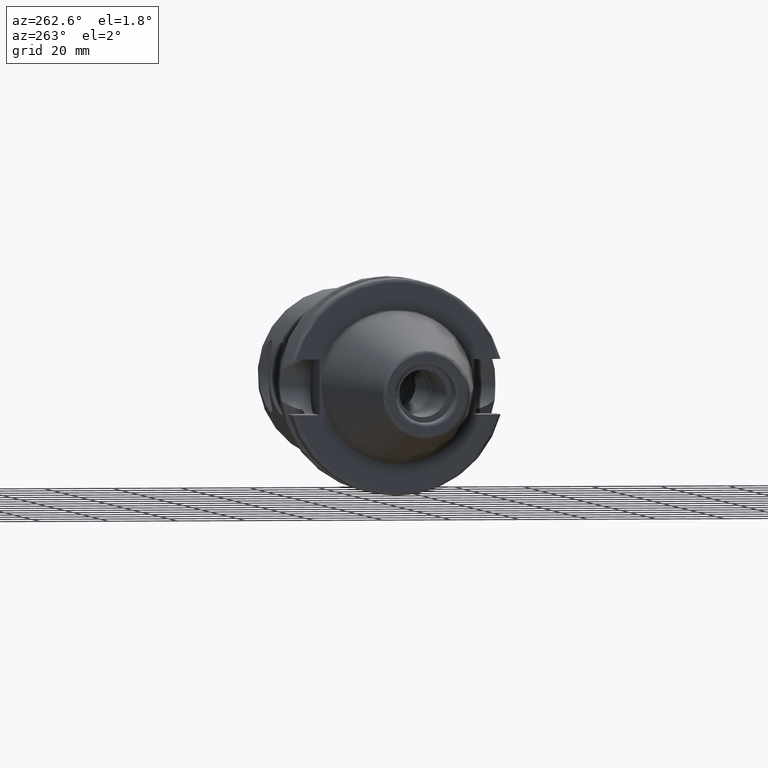
[diagram: clean part render]
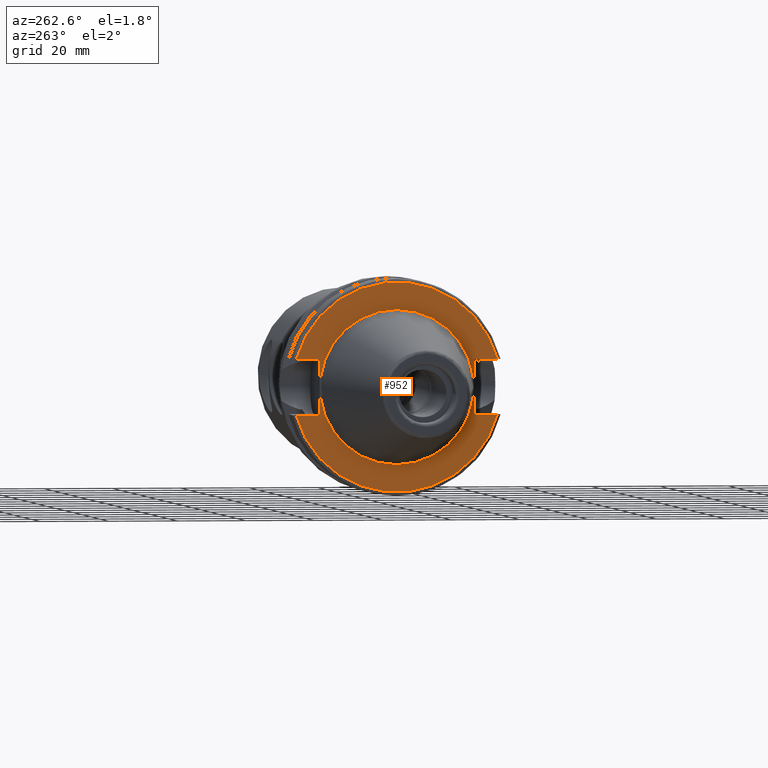
[diagram: same view with one face highlighted and labeled with its STEP entity id]
A machine part, auxiliary view. The second image highlights one B-rep face of the part: STEP entity #952.
In plain terms, the highlighted planar face has unit normal (-1, 0, 0).
Its self-contained STEP definition (entity closure, byte-faithful):
#73=LINE('',#2024,#122);
#77=LINE('',#2032,#126);
#80=LINE('',#2052,#129);
#91=LINE('',#2152,#140);
#94=LINE('',#2173,#143);
#96=LINE('',#2176,#145);
#122=VECTOR('',#1225,10.);
#126=VECTOR('',#1231,10.);
#129=VECTOR('',#1236,10.);
#140=VECTOR('',#1291,10.);
#143=VECTOR('',#1296,10.);
#145=VECTOR('',#1300,10.);
#177=FACE_BOUND('',#304,.T.);
#192=PLANE('',#1080);
#239=FACE_OUTER_BOUND('',#303,.T.);
#303=EDGE_LOOP('',(#838,#839,#840,#841,#842,#843,#844,#845));
#304=EDGE_LOOP('',(#846));
#358=CIRCLE('',#1057,30.5);
#370=CIRCLE('',#1079,22.5);
#371=CIRCLE('',#1081,30.5);
#431=VERTEX_POINT('',#2012);
#432=VERTEX_POINT('',#2023);
#434=VERTEX_POINT('',#2029);
#435=VERTEX_POINT('',#2031);
#450=VERTEX_POINT('',#2112);
#457=VERTEX_POINT('',#2149);
#458=VERTEX_POINT('',#2151);
#462=VERTEX_POINT('',#2172);
#470=VERTEX_POINT('',#2202);
#540=EDGE_CURVE('',#432,#431,#73,.T.);
#544=EDGE_CURVE('',#435,#434,#77,.T.);
#549=EDGE_CURVE('',#434,#432,#80,.T.);
#569=EDGE_CURVE('',#435,#450,#358,.T.);
#579=EDGE_CURVE('',#458,#457,#91,.T.);
#584=EDGE_CURVE('',#462,#450,#94,.T.);
#586=EDGE_CURVE('',#457,#462,#96,.T.);
#600=EDGE_CURVE('',#470,#470,#370,.T.);
#601=EDGE_CURVE('',#458,#431,#371,.T.);
#838=ORIENTED_EDGE('',*,*,#540,.T.);
#839=ORIENTED_EDGE('',*,*,#601,.F.);
#840=ORIENTED_EDGE('',*,*,#579,.T.);
#841=ORIENTED_EDGE('',*,*,#586,.T.);
#842=ORIENTED_EDGE('',*,*,#584,.T.);
#843=ORIENTED_EDGE('',*,*,#569,.F.);
#844=ORIENTED_EDGE('',*,*,#544,.T.);
#845=ORIENTED_EDGE('',*,*,#549,.T.);
#846=ORIENTED_EDGE('',*,*,#600,.T.);
#952=ADVANCED_FACE('',(#239,#177),#192,.T.);
#1057=AXIS2_PLACEMENT_3D('',#2113,#1278,#1279);
#1079=AXIS2_PLACEMENT_3D('',#2204,#1336,#1337);
#1080=AXIS2_PLACEMENT_3D('',#2205,#1338,#1339);
#1081=AXIS2_PLACEMENT_3D('',#2206,#1340,#1341);
#1225=DIRECTION('',(0.,-1.,0.));
#1231=DIRECTION('',(0.,1.,0.));
#1236=DIRECTION('',(0.,0.,1.));
#1278=DIRECTION('center_axis',(1.,0.,0.));
#1279=DIRECTION('ref_axis',(0.,0.,-1.));
#1291=DIRECTION('',(0.,-1.,0.));
#1296=DIRECTION('',(0.,1.,0.));
#1300=DIRECTION('',(0.,0.,-1.));
#1336=DIRECTION('center_axis',(1.,0.,0.));
#1337=DIRECTION('ref_axis',(0.,0.,-1.));
#1338=DIRECTION('center_axis',(-1.,0.,0.));
#1339=DIRECTION('ref_axis',(0.,0.,1.));
#1340=DIRECTION('center_axis',(1.,0.,0.));
#1341=DIRECTION('ref_axis',(0.,0.,-1.));
#2012=CARTESIAN_POINT('',(1.99999999999999,-29.4184890842477,8.05));
#2023=CARTESIAN_POINT('',(1.99999999999999,-22.6,8.05));
#2024=CARTESIAN_POINT('',(1.99999999999999,3.95,8.05));
#2029=CARTESIAN_POINT('',(1.99999999999999,-22.6,-8.05));
#2031=CARTESIAN_POINT('',(1.99999999999999,-29.4184890842477,-8.05));
#2032=CARTESIAN_POINT('',(1.99999999999999,3.95,-8.05));
#2052=CARTESIAN_POINT('',(1.99999999999999,-22.6,0.));
#2112=CARTESIAN_POINT('',(1.99999999999999,29.4184890842477,-8.05));
#2113=CARTESIAN_POINT('Origin',(1.99999999999999,0.,0.));
#2149=CARTESIAN_POINT('',(1.99999999999999,22.6,8.05));
#2151=CARTESIAN_POINT('',(1.99999999999999,29.4184890842477,8.05));
#2152=CARTESIAN_POINT('',(1.99999999999999,26.55,8.05));
#2172=CARTESIAN_POINT('',(1.99999999999999,22.6,-8.05));
#2173=CARTESIAN_POINT('',(1.99999999999999,26.55,-8.05));
#2176=CARTESIAN_POINT('',(1.99999999999999,22.6,0.));
#2202=CARTESIAN_POINT('',(2.,-2.75545529808154E-15,22.5));
#2204=CARTESIAN_POINT('Origin',(2.,0.,0.));
#2205=CARTESIAN_POINT('Origin',(1.99999999999999,30.5,0.));
#2206=CARTESIAN_POINT('Origin',(1.99999999999999,0.,0.));